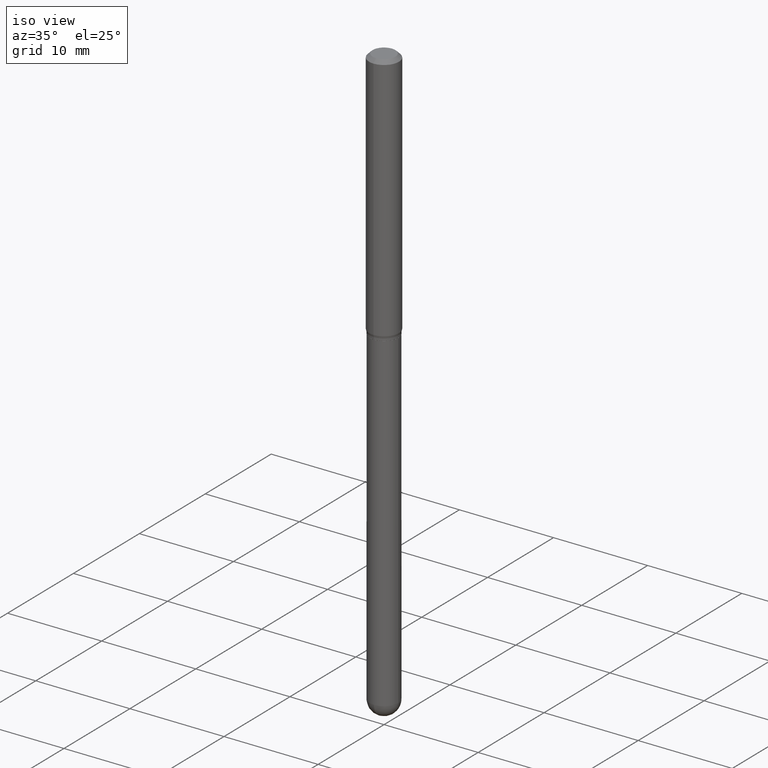
[diagram: clean part render]
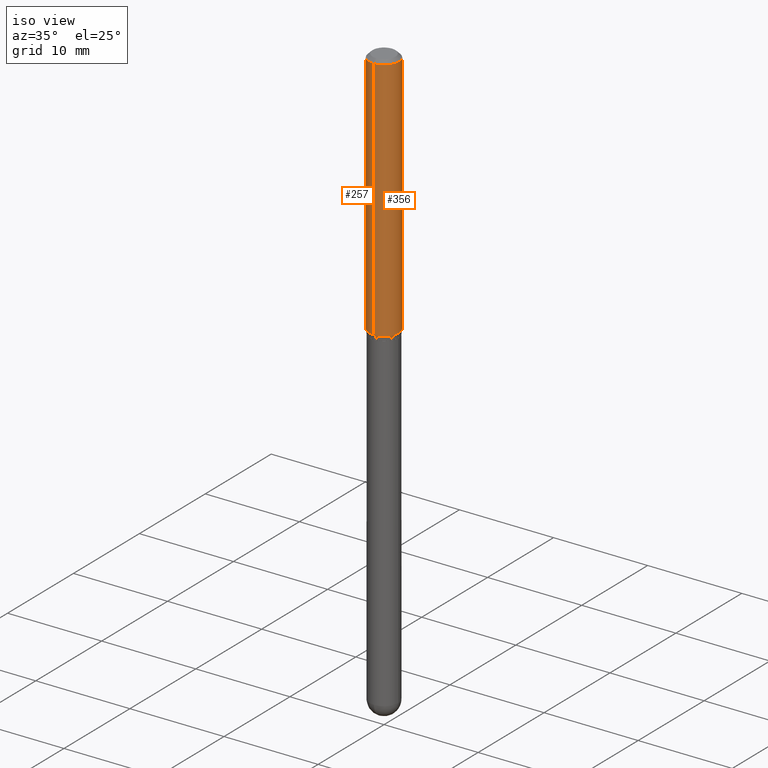
[diagram: same view with one multi-face feature highlighted, each face labeled with its STEP entity id]
A machine part, iso view. The highlighted faces form ONE feature: a constant-radius fillet chain: 2 tangent blend faces with common blend radius 1.5875 mm. The faces share edges in the B-rep.
Their STEP definitions:
[1] entity #356 (Cylinder):
#19 = VERTEX_POINT ( 'NONE', #250 ) ;
#28 = CIRCLE ( 'NONE', #455, 0.06250000000000000000 ) ;
#46 = EDGE_CURVE ( 'NONE', #378, #447, #51, .T. ) ;
#51 = LINE ( 'NONE', #464, #432 ) ;
#69 = ORIENTED_EDGE ( 'NONE', *, *, #46, .T. ) ;
#89 = VERTEX_POINT ( 'NONE', #502 ) ;
#94 = CARTESIAN_POINT ( 'NONE',  ( 3.668393426820908576E-31, -5.236949605916570239E-17, -0.01500000000000032904 ) ) ;
#96 = CARTESIAN_POINT ( 'NONE',  ( 4.440892098500882541E-16, 0.06249999999999995143, -0.01500000000000054588 ) ) ;
#99 = DIRECTION ( 'NONE',  ( -2.445595617880551884E-29, 3.491299737277637269E-15, 1.000000000000000000 ) ) ;
#105 = CARTESIAN_POINT ( 'NONE',  ( 4.440892098500880569E-16, 0.06249999999999638484, -1.040669872981079047 ) ) ;
#123 = AXIS2_PLACEMENT_3D ( 'NONE', #94, #321, #282 ) ;
#131 = DIRECTION ( 'NONE',  ( -2.445595617880551884E-29, 3.491299737277637269E-15, 1.000000000000000000 ) ) ;
#133 = DIRECTION ( 'NONE',  ( -2.445595617880551884E-29, 3.491299737277637269E-15, 1.000000000000000000 ) ) ;
#172 = AXIS2_PLACEMENT_3D ( 'NONE', #298, #133, #483 ) ;
#210 = CIRCLE ( 'NONE', #123, 0.06250000000000000000 ) ;
#230 = DIRECTION ( 'NONE',  ( -2.445595617880551884E-29, 3.491299737277637269E-15, 1.000000000000000000 ) ) ;
#238 = ORIENTED_EDGE ( 'NONE', *, *, #247, .F. ) ;
#247 = EDGE_CURVE ( 'NONE', #89, #447, #210, .T. ) ;
#250 = CARTESIAN_POINT ( 'NONE',  ( -4.364351673553660314E-16, -0.06250000000000360822, -1.040669872981078603 ) ) ;
#282 = DIRECTION ( 'NONE',  ( -6.982962677686265922E-15, -1.000000000000000000, 3.483106191921935554E-15 ) ) ;
#295 = FACE_OUTER_BOUND ( 'NONE', #307, .T. ) ;
#298 = CARTESIAN_POINT ( 'NONE',  ( 0.000000000000000000, 0.000000000000000000, 0.000000000000000000 ) ) ;
#307 = EDGE_LOOP ( 'NONE', ( #346, #69, #238, #369 ) ) ;
#321 = DIRECTION ( 'NONE',  ( -2.445595617880551884E-29, 3.491299737277637269E-15, 1.000000000000000000 ) ) ;
#333 = CYLINDRICAL_SURFACE ( 'NONE', #172, 0.06250000000000000000 ) ;
#346 = ORIENTED_EDGE ( 'NONE', *, *, #380, .T. ) ;
#356 = ADVANCED_FACE ( 'NONE', ( #295 ), #333, .T. ) ;
#369 = ORIENTED_EDGE ( 'NONE', *, *, #370, .F. ) ;
#370 = EDGE_CURVE ( 'NONE', #19, #89, #404, .T. ) ;
#378 = VERTEX_POINT ( 'NONE', #105 ) ;
#380 = EDGE_CURVE ( 'NONE', #19, #378, #28, .T. ) ;
#404 = LINE ( 'NONE', #484, #479 ) ;
#432 = VECTOR ( 'NONE', #230, 39.37007874015748143 ) ;
#445 = CARTESIAN_POINT ( 'NONE',  ( 2.545057681022836912E-29, -3.633290454131592960E-15, -1.040669872981078825 ) ) ;
#447 = VERTEX_POINT ( 'NONE', #96 ) ;
#450 = DIRECTION ( 'NONE',  ( -6.982962677686265922E-15, -1.000000000000000000, 4.370956789862821150E-15 ) ) ;
#455 = AXIS2_PLACEMENT_3D ( 'NONE', #445, #131, #450 ) ;
#464 = CARTESIAN_POINT ( 'NONE',  ( 4.440892098500625669E-16, 0.06250000000000000000, -2.182062335798523293E-16 ) ) ;
#479 = VECTOR ( 'NONE', #99, 39.37007874015748143 ) ;
#483 = DIRECTION ( 'NONE',  ( -6.982962677686265922E-15, -1.000000000000000000, 3.491299737277637269E-15 ) ) ;
#484 = CARTESIAN_POINT ( 'NONE',  ( -4.364351673553916201E-16, -0.06250000000000000000, 2.182062335798523293E-16 ) ) ;
#502 = CARTESIAN_POINT ( 'NONE',  ( -4.364351673553912750E-16, -0.06250000000000005551, -0.01500000000000011047 ) ) ;
[2] entity #257 (Cylinder):
#14 = DIRECTION ( 'NONE',  ( -6.982962677686265922E-15, -1.000000000000000000, 4.370956789862821150E-15 ) ) ;
#15 = EDGE_LOOP ( 'NONE', ( #206, #297, #275, #438 ) ) ;
#19 = VERTEX_POINT ( 'NONE', #250 ) ;
#30 = CARTESIAN_POINT ( 'NONE',  ( 0.000000000000000000, 0.000000000000000000, 0.000000000000000000 ) ) ;
#40 = AXIS2_PLACEMENT_3D ( 'NONE', #480, #287, #436 ) ;
#46 = EDGE_CURVE ( 'NONE', #378, #447, #51, .T. ) ;
#51 = LINE ( 'NONE', #464, #432 ) ;
#53 = CARTESIAN_POINT ( 'NONE',  ( 2.545057681022836912E-29, -3.633290454131592960E-15, -1.040669872981078825 ) ) ;
#89 = VERTEX_POINT ( 'NONE', #502 ) ;
#96 = CARTESIAN_POINT ( 'NONE',  ( 4.440892098500882541E-16, 0.06249999999999995143, -0.01500000000000054588 ) ) ;
#99 = DIRECTION ( 'NONE',  ( -2.445595617880551884E-29, 3.491299737277637269E-15, 1.000000000000000000 ) ) ;
#105 = CARTESIAN_POINT ( 'NONE',  ( 4.440892098500880569E-16, 0.06249999999999638484, -1.040669872981079047 ) ) ;
#124 = CYLINDRICAL_SURFACE ( 'NONE', #367, 0.06250000000000000000 ) ;
#125 = DIRECTION ( 'NONE',  ( -6.982962677686265922E-15, -1.000000000000000000, 3.491299737277637269E-15 ) ) ;
#132 = CIRCLE ( 'NONE', #395, 0.06250000000000000000 ) ;
#173 = DIRECTION ( 'NONE',  ( -2.445595617880551884E-29, 3.491299737277637269E-15, 1.000000000000000000 ) ) ;
#206 = ORIENTED_EDGE ( 'NONE', *, *, #46, .F. ) ;
#230 = DIRECTION ( 'NONE',  ( -2.445595617880551884E-29, 3.491299737277637269E-15, 1.000000000000000000 ) ) ;
#235 = FACE_OUTER_BOUND ( 'NONE', #15, .T. ) ;
#242 = DIRECTION ( 'NONE',  ( -2.445595617880551884E-29, 3.491299737277637269E-15, 1.000000000000000000 ) ) ;
#250 = CARTESIAN_POINT ( 'NONE',  ( -4.364351673553660314E-16, -0.06250000000000360822, -1.040669872981078603 ) ) ;
#257 = ADVANCED_FACE ( 'NONE', ( #235 ), #124, .T. ) ;
#275 = ORIENTED_EDGE ( 'NONE', *, *, #370, .T. ) ;
#277 = EDGE_CURVE ( 'NONE', #447, #89, #494, .T. ) ;
#287 = DIRECTION ( 'NONE',  ( -2.445595617880551884E-29, 3.491299737277637269E-15, 1.000000000000000000 ) ) ;
#297 = ORIENTED_EDGE ( 'NONE', *, *, #328, .T. ) ;
#328 = EDGE_CURVE ( 'NONE', #378, #19, #132, .T. ) ;
#367 = AXIS2_PLACEMENT_3D ( 'NONE', #30, #242, #125 ) ;
#370 = EDGE_CURVE ( 'NONE', #19, #89, #404, .T. ) ;
#378 = VERTEX_POINT ( 'NONE', #105 ) ;
#395 = AXIS2_PLACEMENT_3D ( 'NONE', #53, #173, #14 ) ;
#404 = LINE ( 'NONE', #484, #479 ) ;
#432 = VECTOR ( 'NONE', #230, 39.37007874015748143 ) ;
#436 = DIRECTION ( 'NONE',  ( -6.982962677686265922E-15, -1.000000000000000000, 3.483106191921935554E-15 ) ) ;
#438 = ORIENTED_EDGE ( 'NONE', *, *, #277, .F. ) ;
#447 = VERTEX_POINT ( 'NONE', #96 ) ;
#464 = CARTESIAN_POINT ( 'NONE',  ( 4.440892098500625669E-16, 0.06250000000000000000, -2.182062335798523293E-16 ) ) ;
#479 = VECTOR ( 'NONE', #99, 39.37007874015748143 ) ;
#480 = CARTESIAN_POINT ( 'NONE',  ( 3.668393426820908576E-31, -5.236949605916570239E-17, -0.01500000000000032904 ) ) ;
#484 = CARTESIAN_POINT ( 'NONE',  ( -4.364351673553916201E-16, -0.06250000000000000000, 2.182062335798523293E-16 ) ) ;
#494 = CIRCLE ( 'NONE', #40, 0.06250000000000000000 ) ;
#502 = CARTESIAN_POINT ( 'NONE',  ( -4.364351673553912750E-16, -0.06250000000000005551, -0.01500000000000011047 ) ) ;